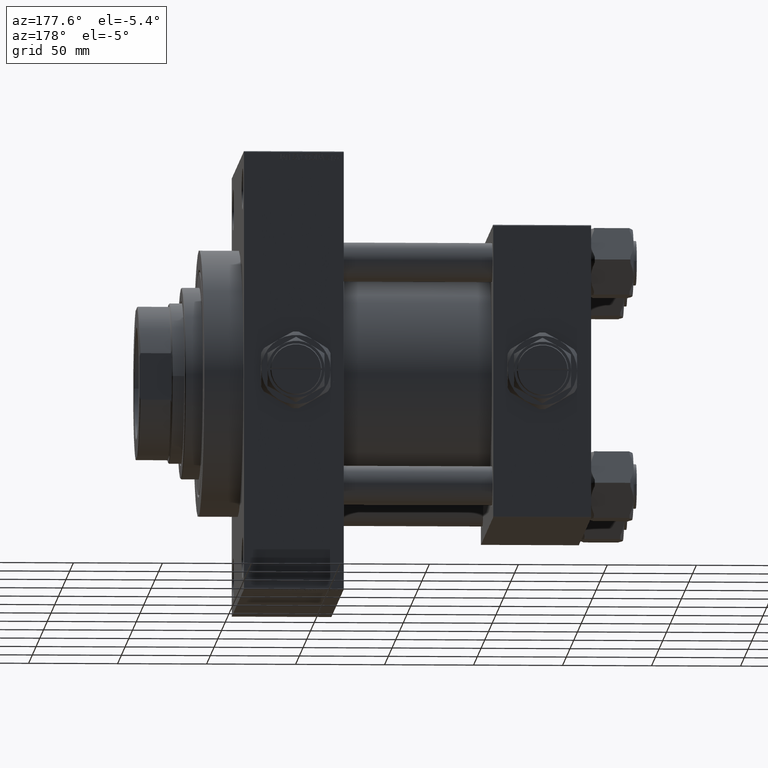
[diagram: clean part render]
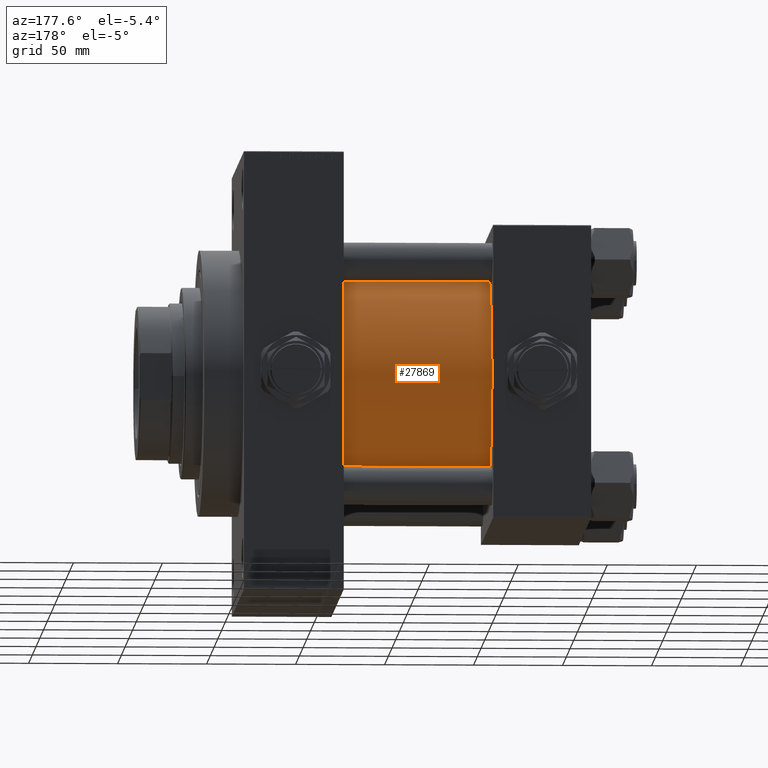
[diagram: same view with one face highlighted and labeled with its STEP entity id]
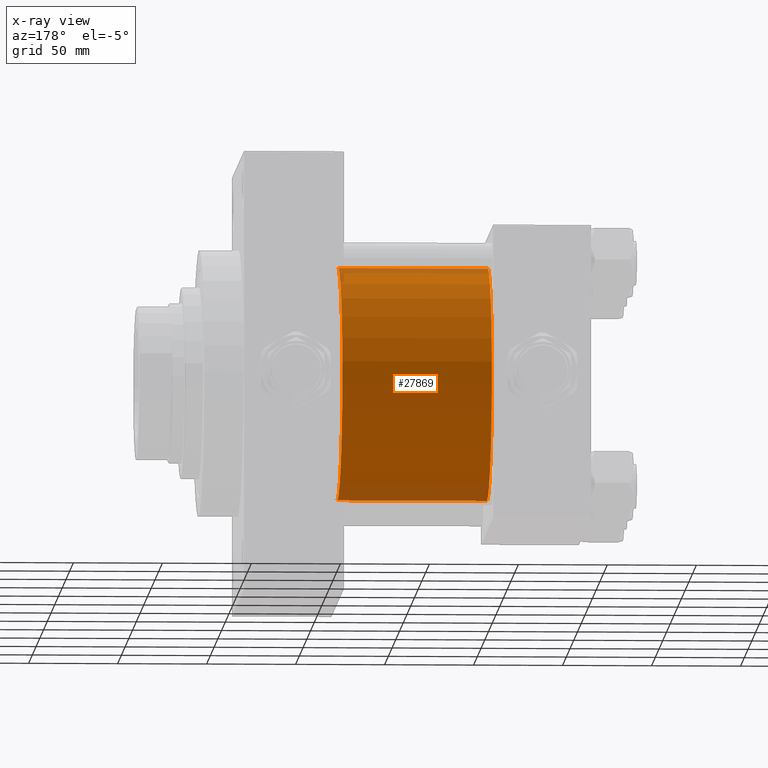
[diagram: x-ray of the same camera — body ghosted, the highlighted face saturated]
A machine part, auxiliary view. The second image highlights one B-rep face of the part: STEP entity #27869.
The next image is the same camera in x-ray: the body ghosted, the highlighted face saturated — about 10% of this face is hidden behind the body in this view.
In plain terms, the highlighted cylindrical surface (partial cylindrical patch) has radius 65.5 mm, axis along (-1, -0, -0).
Its self-contained STEP definition (entity closure, byte-faithful):
#2686 = AXIS2_PLACEMENT_3D ( 'NONE', #47525, #39922, #11237 ) ;
#3260 = CARTESIAN_POINT ( 'NONE',  ( 54.99999999999999289, 5.419351320449953395E-15, -65.50000000000001421 ) ) ;
#3553 = CARTESIAN_POINT ( 'NONE',  ( 139.0000000000000000, 5.419351320449953395E-15, -65.50000000000001421 ) ) ;
#5751 = CARTESIAN_POINT ( 'NONE',  ( 139.0000000000000000, -2.602085213965210642E-15, 0.000000000000000000 ) ) ;
#7860 = VECTOR ( 'NONE', #42351, 1000.000000000000000 ) ;
#8438 = ORIENTED_EDGE ( 'NONE', *, *, #27323, .F. ) ;
#8731 = ORIENTED_EDGE ( 'NONE', *, *, #42883, .F. ) ;
#8922 = DIRECTION ( 'NONE',  ( 0.000000000000000000, 0.000000000000000000, 1.000000000000000000 ) ) ;
#11237 = DIRECTION ( 'NONE',  ( 0.000000000000000000, 0.000000000000000000, 1.000000000000000000 ) ) ;
#12649 = ORIENTED_EDGE ( 'NONE', *, *, #35106, .T. ) ;
#12717 = CARTESIAN_POINT ( 'NONE',  ( 54.99999999999999289, -2.602085213965210642E-15, 0.000000000000000000 ) ) ;
#13005 = EDGE_LOOP ( 'NONE', ( #8438, #12649, #23424, #8731 ) ) ;
#13361 = DIRECTION ( 'NONE',  ( 1.000000000000000000, 0.000000000000000000, 0.000000000000000000 ) ) ;
#13404 = CIRCLE ( 'NONE', #17452, 65.50000000000001421 ) ;
#16614 = CYLINDRICAL_SURFACE ( 'NONE', #2686, 65.50000000000001421 ) ;
#17412 = DIRECTION ( 'NONE',  ( 0.000000000000000000, 0.000000000000000000, -1.000000000000000000 ) ) ;
#17452 = AXIS2_PLACEMENT_3D ( 'NONE', #12717, #43649, #8922 ) ;
#17930 = VERTEX_POINT ( 'NONE', #34682 ) ;
#22526 = CARTESIAN_POINT ( 'NONE',  ( 54.99999999999999289, -2.602085213965210642E-15, 65.50000000000001421 ) ) ;
#23424 = ORIENTED_EDGE ( 'NONE', *, *, #39977, .T. ) ;
#23859 = CARTESIAN_POINT ( 'NONE',  ( 139.0000000000000000, 5.419351320449953395E-15, -65.50000000000001421 ) ) ;
#25003 = DIRECTION ( 'NONE',  ( -1.000000000000000000, -0.000000000000000000, -0.000000000000000000 ) ) ;
#25256 = CARTESIAN_POINT ( 'NONE',  ( 139.0000000000000000, -2.602085213965210642E-15, 65.50000000000001421 ) ) ;
#27323 = EDGE_CURVE ( 'NONE', #41674, #17930, #34205, .T. ) ;
#27869 = ADVANCED_FACE ( 'NONE', ( #44720 ), #16614, .T. ) ;
#31787 = AXIS2_PLACEMENT_3D ( 'NONE', #5751, #13361, #17412 ) ;
#33095 = LINE ( 'NONE', #25256, #33745 ) ;
#33745 = VECTOR ( 'NONE', #25003, 1000.000000000000000 ) ;
#34205 = CIRCLE ( 'NONE', #31787, 65.50000000000001421 ) ;
#34682 = CARTESIAN_POINT ( 'NONE',  ( 139.0000000000000000, -2.602085213965210642E-15, 65.50000000000001421 ) ) ;
#35106 = EDGE_CURVE ( 'NONE', #41674, #42738, #39057, .T. ) ;
#39057 = LINE ( 'NONE', #23859, #7860 ) ;
#39922 = DIRECTION ( 'NONE',  ( -1.000000000000000000, -0.000000000000000000, -0.000000000000000000 ) ) ;
#39977 = EDGE_CURVE ( 'NONE', #42738, #43608, #13404, .T. ) ;
#41674 = VERTEX_POINT ( 'NONE', #3553 ) ;
#42351 = DIRECTION ( 'NONE',  ( -1.000000000000000000, -0.000000000000000000, -0.000000000000000000 ) ) ;
#42738 = VERTEX_POINT ( 'NONE', #3260 ) ;
#42883 = EDGE_CURVE ( 'NONE', #17930, #43608, #33095, .T. ) ;
#43608 = VERTEX_POINT ( 'NONE', #22526 ) ;
#43649 = DIRECTION ( 'NONE',  ( 1.000000000000000000, -0.000000000000000000, -0.000000000000000000 ) ) ;
#44720 = FACE_OUTER_BOUND ( 'NONE', #13005, .T. ) ;
#47525 = CARTESIAN_POINT ( 'NONE',  ( 139.0000000000000000, -2.602085213965210642E-15, 0.000000000000000000 ) ) ;